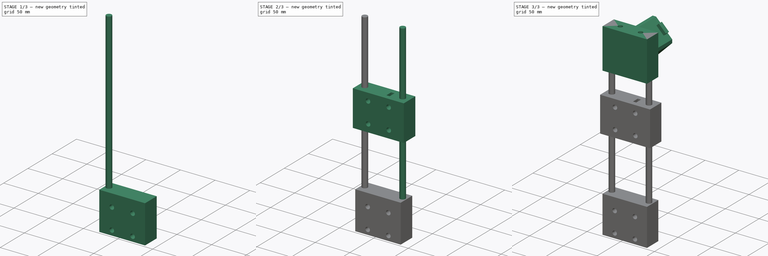
[diagram: build sequence overview — one tinted view per stage of 3, left to right]
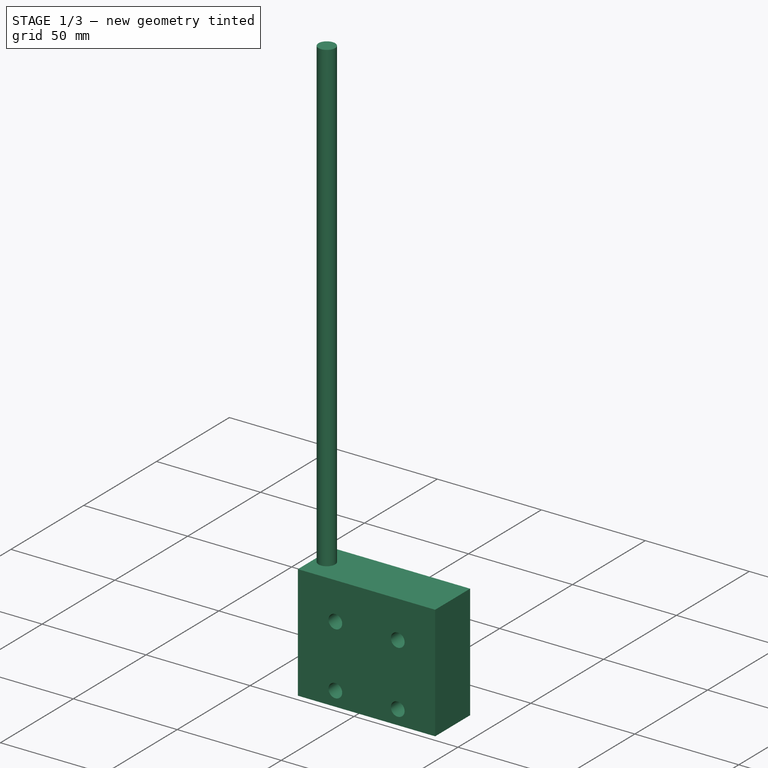
[diagram: stage 1 of 3 — iso view after this stage's code; geometry added in this stage tinted green]
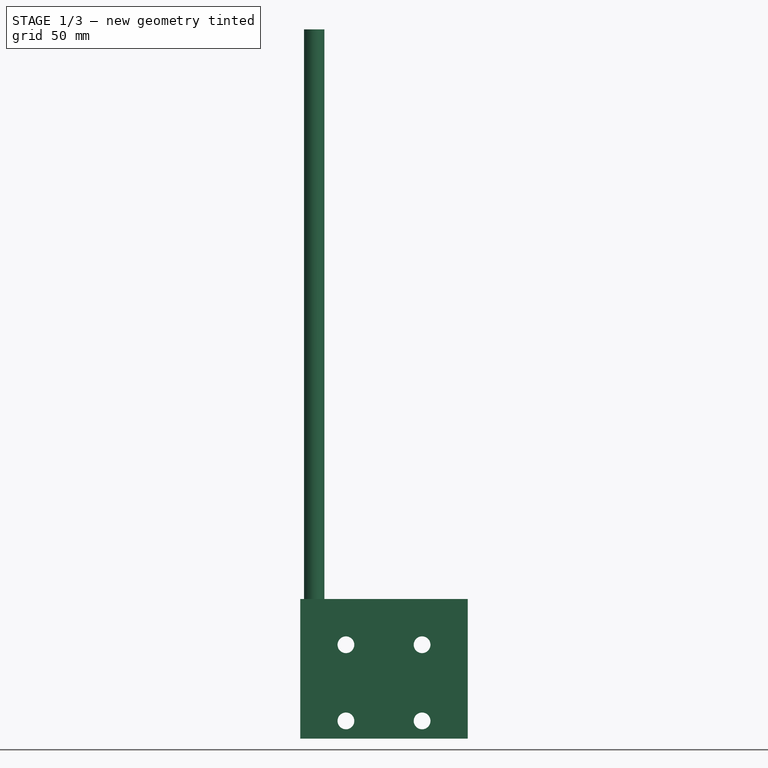
[diagram: stage 1 of 3 — front view after this stage's code; geometry added in this stage tinted green]
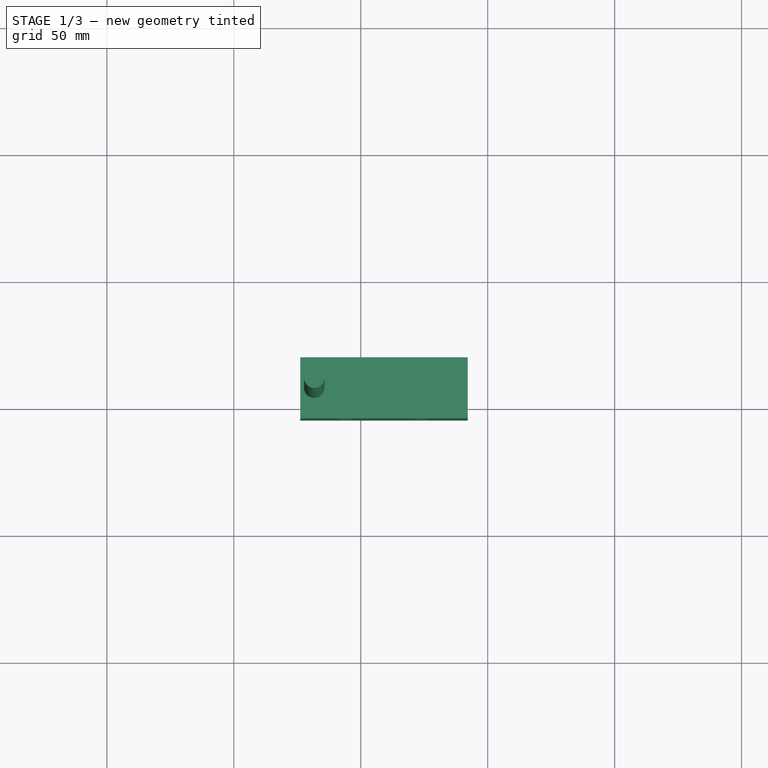
[diagram: stage 1 of 3 — top view after this stage's code; geometry added in this stage tinted green]
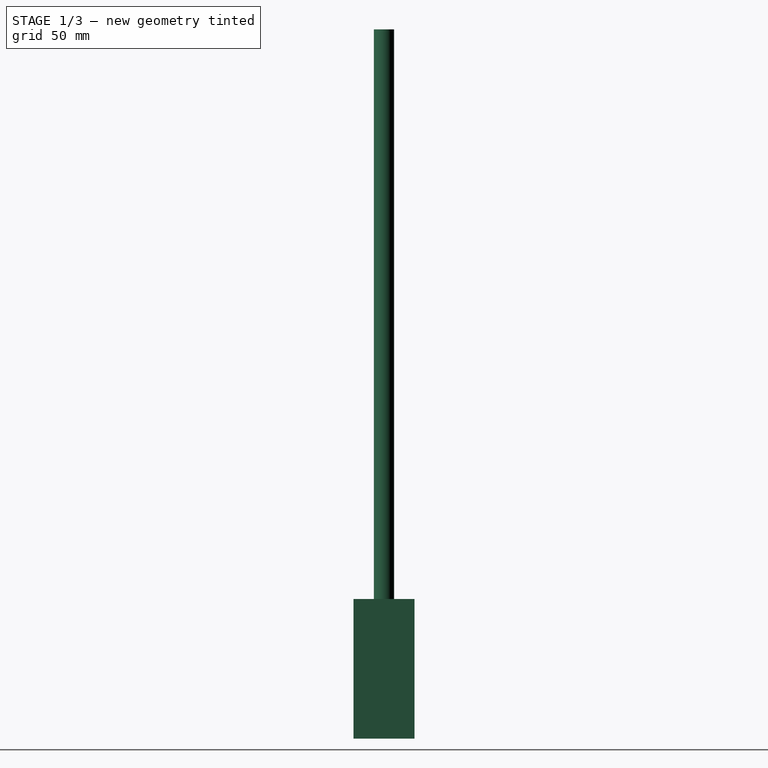
[diagram: stage 1 of 3 — right view after this stage's code; geometry added in this stage tinted green]
FCSTD DOCUMENT  (FreeCAD 0.16R6705 (Git))
Label: D3D_Circuit_Mill_Z_Axis(1)
License: All rights reserved
LicenseURL: http://en.wikipedia.org/wiki/All_rights_reserved
objects: PartDesign::Pocket×3, PartDesign::Pad×2, Part::Cylinder×2, Part::Feature×1, App::DocumentObjectGroup×1, Sketcher::SketchObject×1
note: 14 computed .brp shape members not serialized (recipe doc carries the construction recipe); baked Part::Feature solids carry a one-line shape summary decoded from their .brp

FEATURE [Part::Cylinder] Cylinder001
  Angle = 360
  Height = 279.4
  Placement = pos=(-18.3449,7.52167,-94.231) rot=(0.707107,-0.707107,0;3.14159rad)
  Radius = 4
FEATURE [PartDesign::Pocket] Pocket003
  Length = 100
  Type = 0
FEATURE [App::DocumentObjectGroup] Construction
FEATURE [Sketcher::SketchObject] Sketch
  Placement = pos=(9.15516,19.5217,-346.131) rot=(1,0,0;1.5708rad)
  sketch-geometry (12):
    g0: LineSegment StartX=-33 StartY=-27.5 StartZ=0 EndX=33 EndY=-27.5 EndZ=0
    g1: LineSegment StartX=33 StartY=-27.5 StartZ=0 EndX=33 EndY=27.5 EndZ=0
    g2: LineSegment StartX=33 StartY=27.5 StartZ=0 EndX=-33 EndY=27.5 EndZ=0
    g3: LineSegment StartX=-33 StartY=27.5 StartZ=0 EndX=-33 EndY=-27.5 EndZ=0
    g4: LineSegment [constr] StartX=-15 StartY=9.5 StartZ=0 EndX=15 EndY=9.5 EndZ=0
    g5: LineSegment [constr] StartX=15 StartY=9.5 StartZ=0 EndX=15 EndY=-20.5 EndZ=0
    g6: LineSegment [constr] StartX=15 StartY=-20.5 StartZ=0 EndX=-15 EndY=-20.5 EndZ=0
    g7: LineSegment [constr] StartX=-15 StartY=-20.5 StartZ=0 EndX=-15 EndY=9.5 EndZ=0
    g8: Circle CenterX=-15 CenterY=9.5 CenterZ=0 NormalX=0 NormalY=0 NormalZ=1 Radius=3.3
    g9: Circle CenterX=15 CenterY=9.5 CenterZ=0 NormalX=0 NormalY=0 NormalZ=1 Radius=3.3
    g10: Circle CenterX=-15 CenterY=-20.5 CenterZ=0 NormalX=0 NormalY=0 NormalZ=1 Radius=3.3
    g11: Circle CenterX=15 CenterY=-20.5 CenterZ=0 NormalX=0 NormalY=0 NormalZ=1 Radius=3.3
  constraints (32):
    c: Coincident(g0,g1)
    c: Coincident(g1,g2)
    c: Coincident(g2,g3)
    c: Coincident(g3,g0)
    c: Horizontal(g0)
    c: Horizontal(g2)
    c: Vertical(g1)
    c: Vertical(g3)
    c: DistanceX(g2,g2) = 66
    c: DistanceY(g3,g3) = 55
    c: Symmetric(g2,g1,g-2)
    c: Symmetric(g2,g0,g-1)
    c: Coincident(g4,g5)
    c: Coincident(g5,g6)
    c: Coincident(g6,g7)
    c: Coincident(g7,g4)
    c: Horizontal(g4)
    c: Horizontal(g6)
    c: Vertical(g5)
    c: Vertical(g7)
    c: DistanceX(g4,g4) = 30
    c: DistanceY(g5,g5) = 30
    c: Symmetric(g4,g4,g-2)
    c: DistanceY(g0,g6) = 7
    c: Coincident(g8,g4)
    c: Coincident(g9,g4)
    c: Coincident(g10,g6)
    c: Coincident(g11,g5)
    c: Radius(g9) = 3.3
    c: Equal(g9,g8)
    c: Equal(g9,g10)
    c: Equal(g9,g11)
FEATURE [PartDesign::Pad] Pad
  Length = 24
  Length2 = 100
  Placement = pos=(9.15516,19.5217,-346.131) rot=(1,0,0;1.5708rad)
  Sketch = -> Sketch
  Type = 0
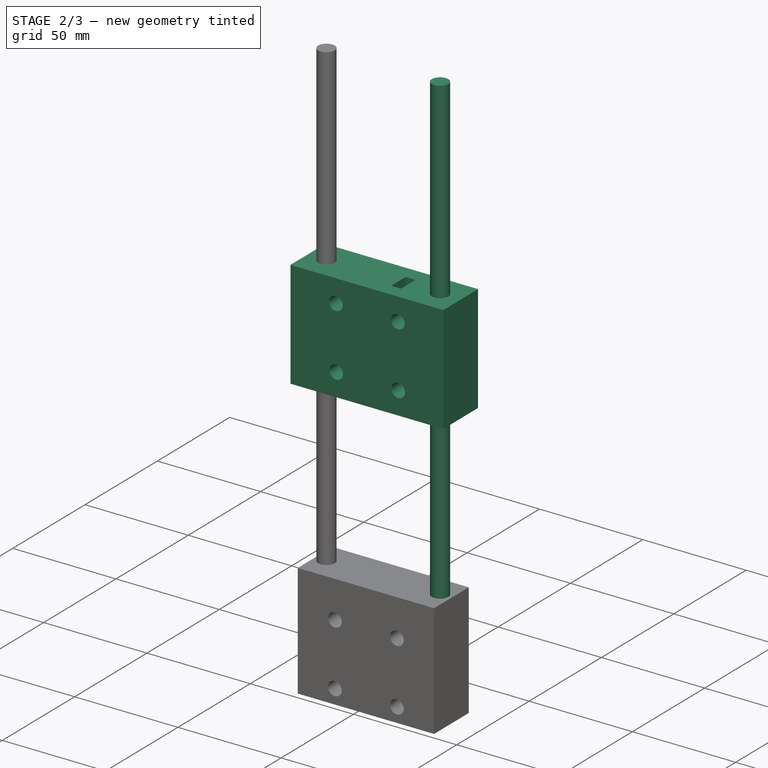
[diagram: stage 2 of 3 — iso view after this stage's code; geometry added in this stage tinted green]
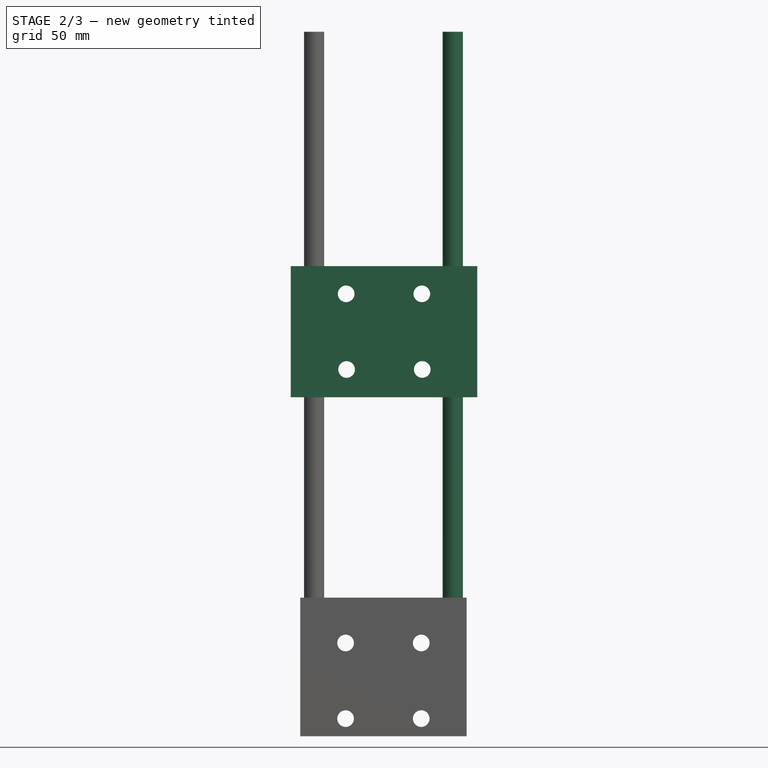
[diagram: stage 2 of 3 — front view after this stage's code; geometry added in this stage tinted green]
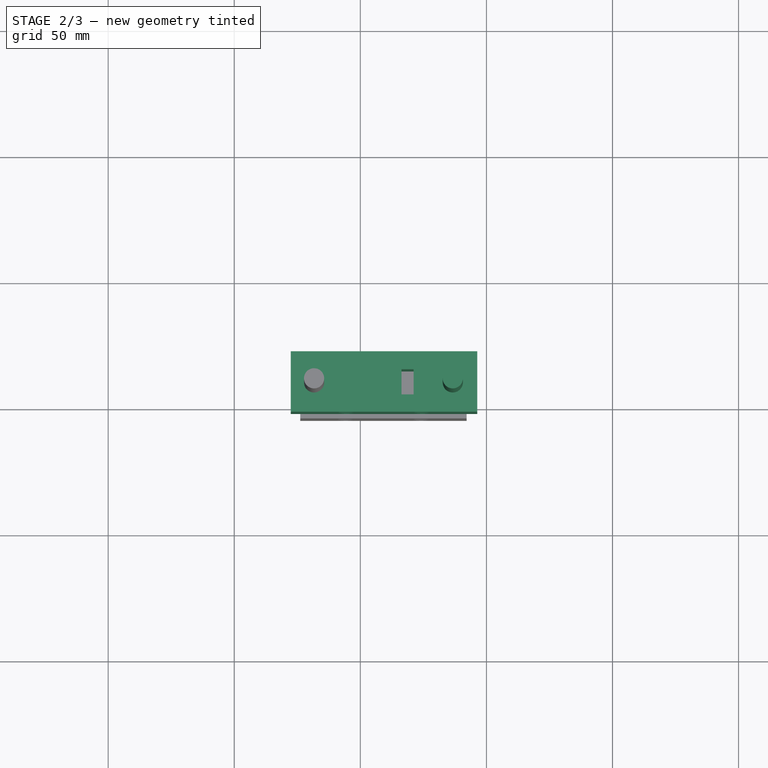
[diagram: stage 2 of 3 — top view after this stage's code; geometry added in this stage tinted green]
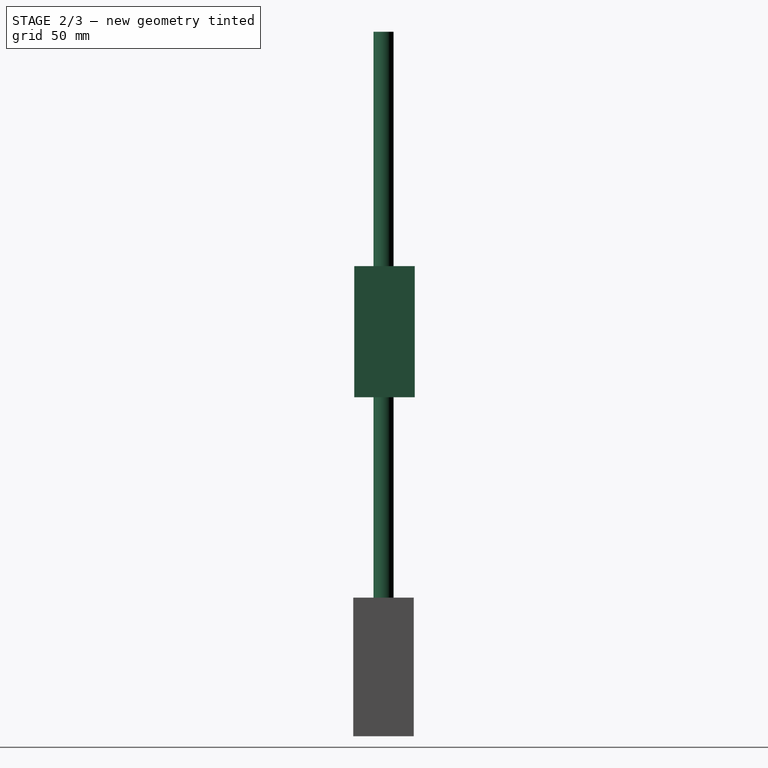
[diagram: stage 2 of 3 — right view after this stage's code; geometry added in this stage tinted green]
FEATURE [Part::Cylinder] Cylinder
  Angle = 360
  Height = 279.4
  Placement = pos=(36.6551,7.52167,-94.231) rot=(0.707107,-0.707107,0;3.14159rad)
  Radius = 4
FEATURE [Part::Feature] Fusion001  label="D3D End Stop Interface simple001"
  Placement = pos=(9.15515,19.5217,-126.231) rot=(-0.57735,0.57735,0.57735;2.0944rad)
  shape: bbox 66 x 6 x 33.5 mm, 17 faces (baked)
FEATURE [PartDesign::Pocket] Pocket002
  Length = 60
  Placement = pos=(4.36033,-4.11958,-220) rot=(-0.57735,0.57735,0.57735;2.0944rad)
  Type = 0
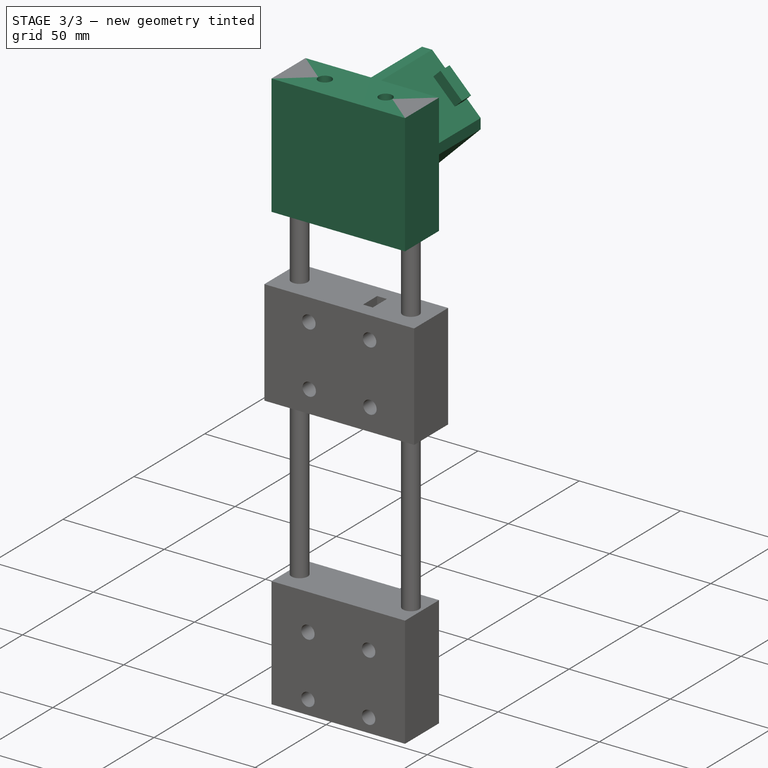
[diagram: stage 3 of 3 — iso view after this stage's code; geometry added in this stage tinted green]
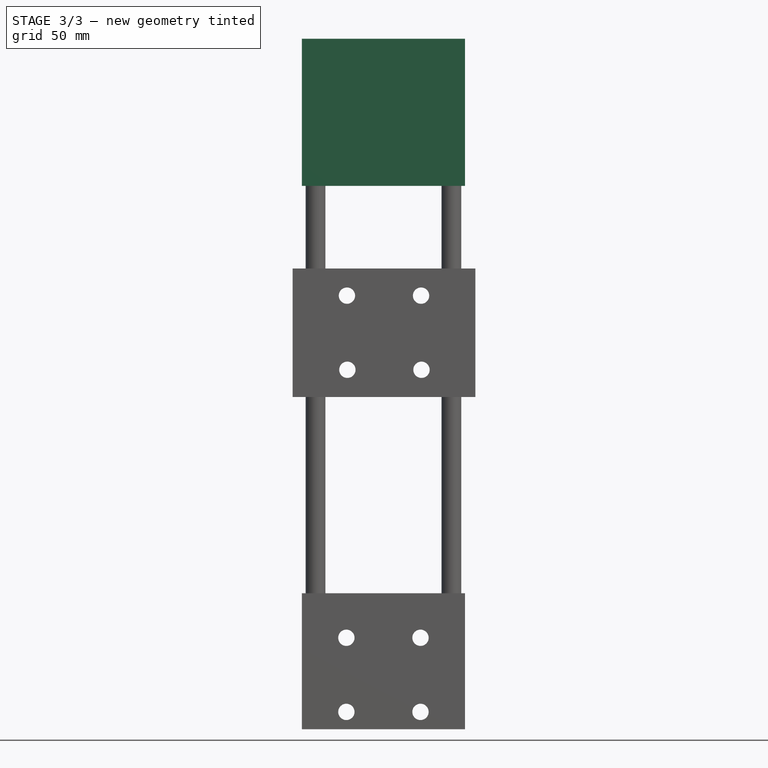
[diagram: stage 3 of 3 — front view after this stage's code; geometry added in this stage tinted green]
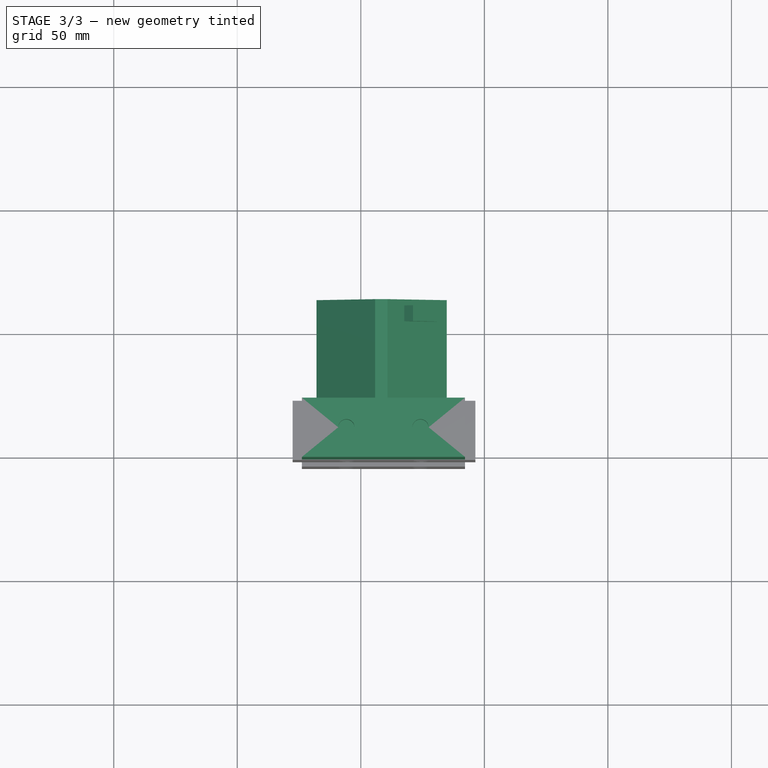
[diagram: stage 3 of 3 — top view after this stage's code; geometry added in this stage tinted green]
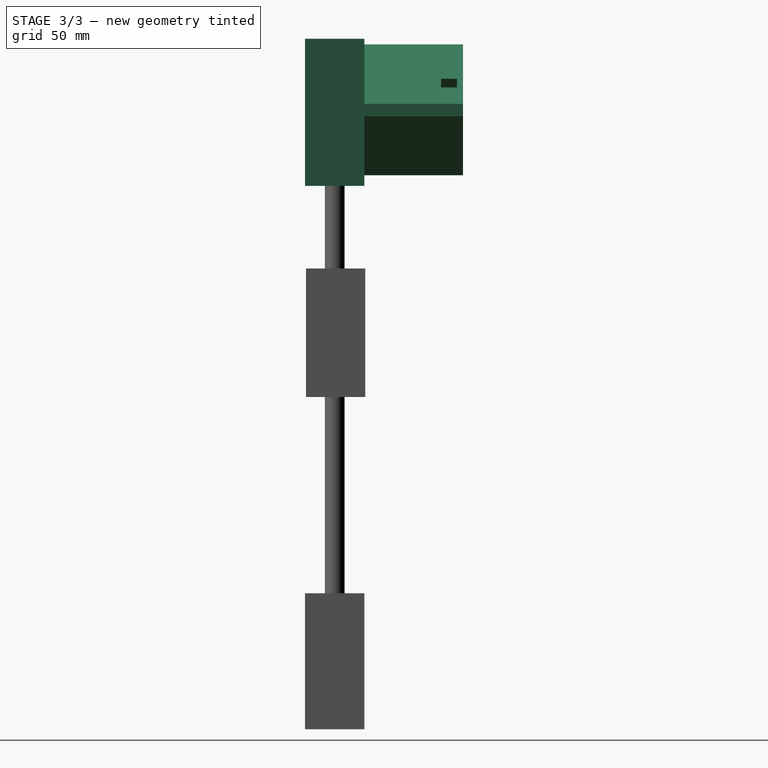
[diagram: stage 3 of 3 — right view after this stage's code; geometry added in this stage tinted green]
FEATURE [PartDesign::Pad] Pad001
  Length = 5
  Length2 = 100
  Placement = pos=(8.30329,19.5217,-123.067) rot=(-1,0,0;1.5708rad)
  Type = 0
FEATURE [PartDesign::Pocket] Pocket
  Length = 10
  Placement = pos=(22.9298,-4.47833,-112.166) rot=(-0.57735,0.57735,0.57735;2.0944rad)
  Type = 0
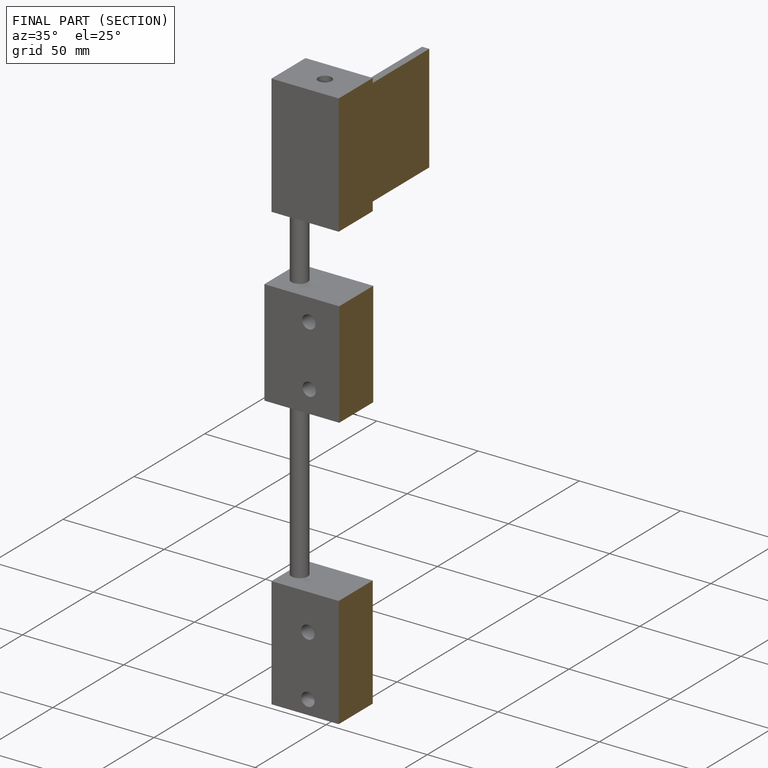
[diagram: finished part — half-section view (interior)]
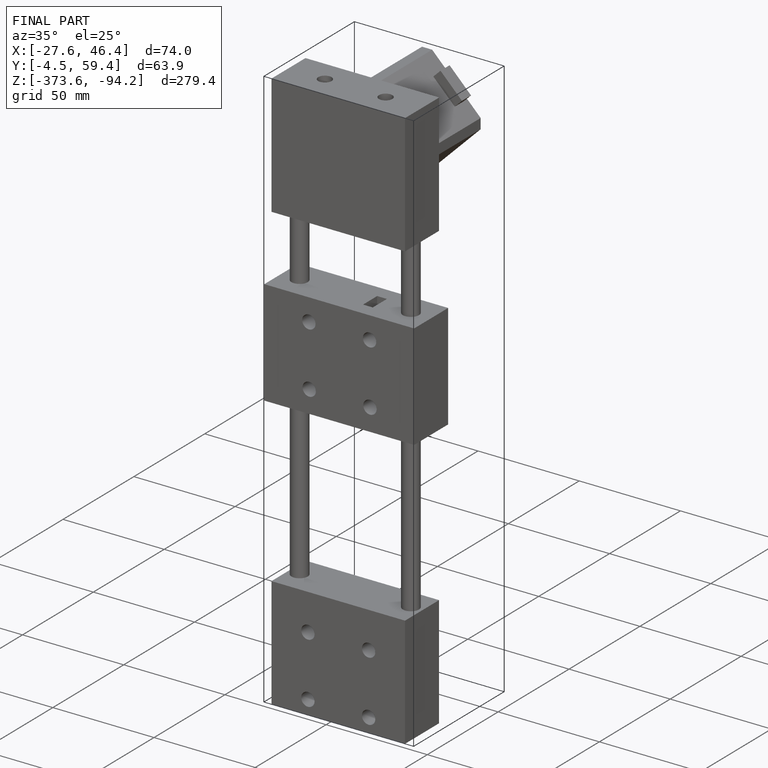
[diagram: finished part — iso view with bounding-box wireframe]
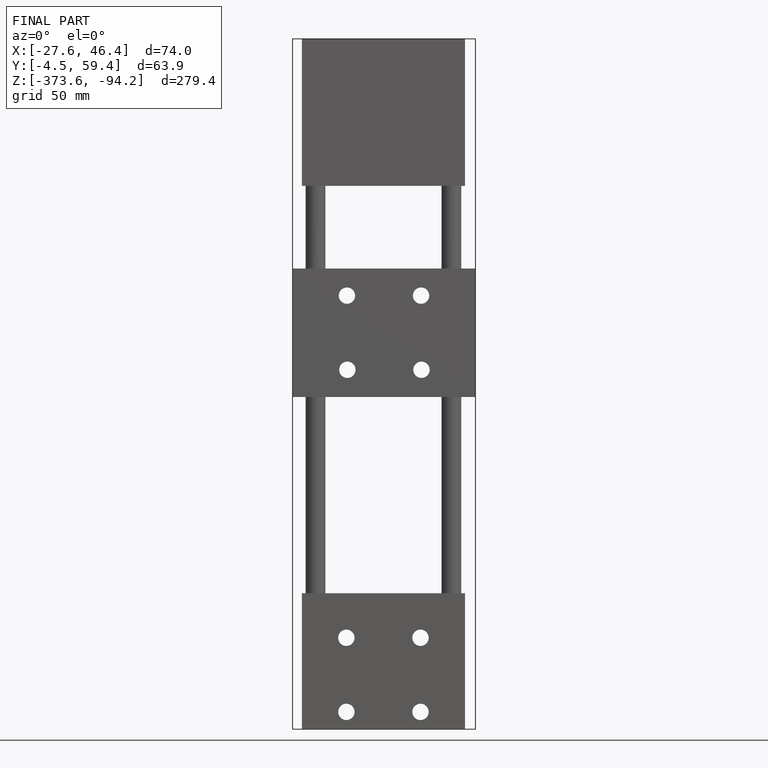
[diagram: finished part — front view with bounding-box wireframe]
